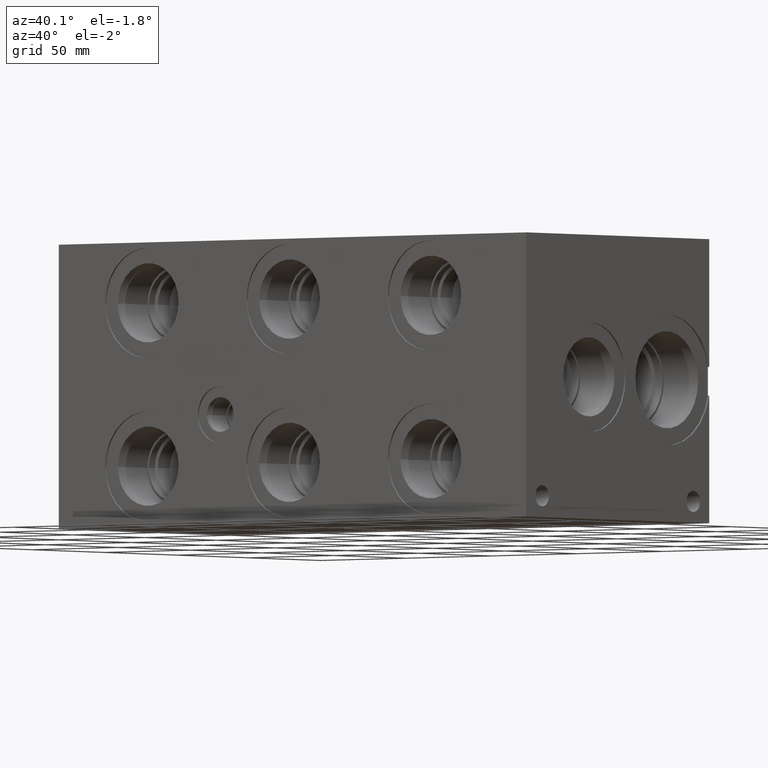
[diagram: clean part render]
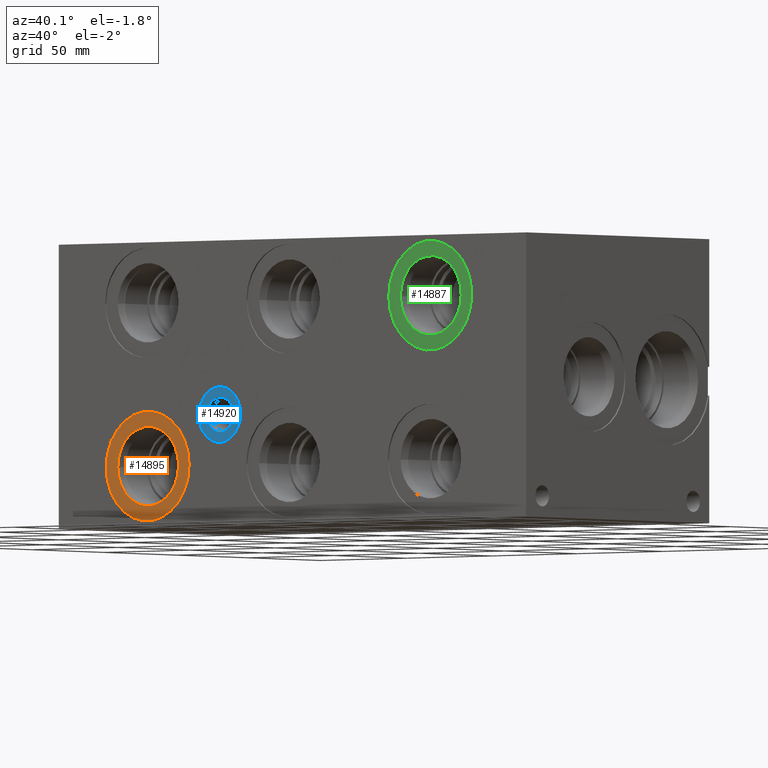
[diagram: same view with three faces highlighted in distinct colors, each labeled with its STEP entity id]
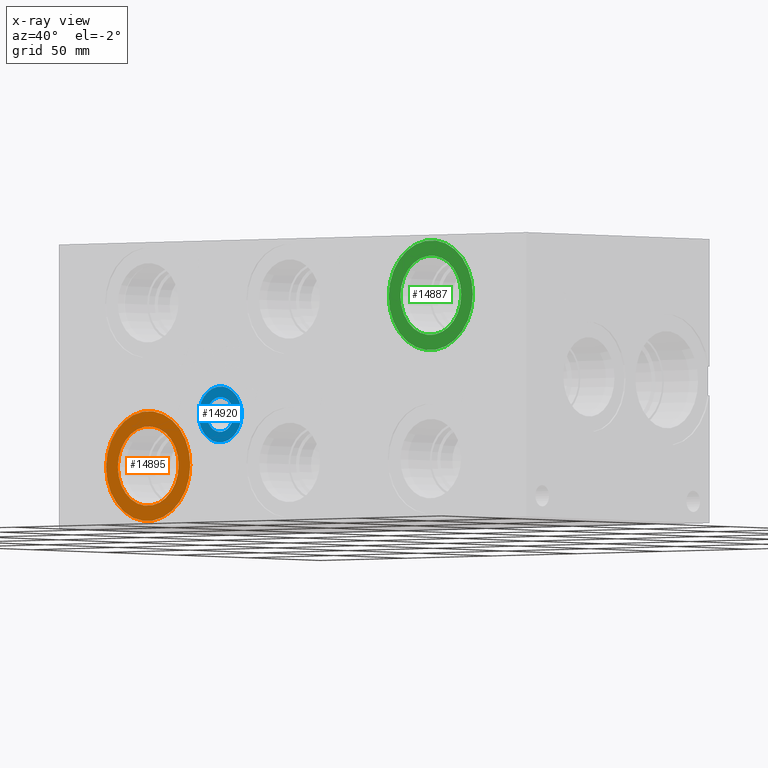
[diagram: x-ray of the same camera — body ghosted, the three highlighted faces saturated]
A machine part, auxiliary view with three faces highlighted in distinct colors.
The next image is the same camera in x-ray (body ghosted, the three faces saturated) — at least one of them is partly hidden behind the body in this view.
Their STEP definitions:

[orange] entity #14895 — the highlighted planar face has unit normal (0, -1, 0).
#414=CIRCLE('',#15706,24.5618);
#415=CIRCLE('',#15707,24.5618);
#416=CIRCLE('',#15708,17.7546);
#681=FACE_BOUND('',#2841,.T.);
#1974=FACE_OUTER_BOUND('',#2840,.T.);
#2840=EDGE_LOOP('',(#12724,#12725));
#2841=EDGE_LOOP('',(#12726));
#6835=VERTEX_POINT('',#25471);
#6836=VERTEX_POINT('',#25472);
#6837=VERTEX_POINT('',#25475);
#8860=EDGE_CURVE('',#6835,#6836,#414,.T.);
#8861=EDGE_CURVE('',#6836,#6835,#415,.T.);
#8862=EDGE_CURVE('',#6837,#6837,#416,.T.);
#12724=ORIENTED_EDGE('',*,*,#8860,.T.);
#12725=ORIENTED_EDGE('',*,*,#8861,.T.);
#12726=ORIENTED_EDGE('',*,*,#8862,.F.);
#13675=PLANE('',#15705);
#14895=ADVANCED_FACE('',(#1974,#681),#13675,.T.);
#15705=AXIS2_PLACEMENT_3D('',#25470,#18594,#18595);
#15706=AXIS2_PLACEMENT_3D('',#25473,#18596,#18597);
#15707=AXIS2_PLACEMENT_3D('',#25474,#18598,#18599);
#15708=AXIS2_PLACEMENT_3D('',#25476,#18600,#18601);
#18594=DIRECTION('center_axis',(0.,-1.,0.));
#18595=DIRECTION('ref_axis',(1.,0.,0.));
#18596=DIRECTION('center_axis',(0.,-1.,0.));
#18597=DIRECTION('ref_axis',(1.,0.,0.));
#18598=DIRECTION('center_axis',(0.,-1.,0.));
#18599=DIRECTION('ref_axis',(1.,0.,0.));
#18600=DIRECTION('center_axis',(0.,-1.,0.));
#18601=DIRECTION('ref_axis',(1.,0.,0.));
#25470=CARTESIAN_POINT('Origin',(51.5874,0.7874,27.0002));
#25471=CARTESIAN_POINT('',(76.1492,0.7874,27.0002));
#25472=CARTESIAN_POINT('',(27.0256,0.7874,27.0002));
#25473=CARTESIAN_POINT('Origin',(51.5874,0.7874,27.0002));
#25474=CARTESIAN_POINT('Origin',(51.5874,0.7874,27.0002));
#25475=CARTESIAN_POINT('',(33.8328,0.7874,27.0002));
#25476=CARTESIAN_POINT('Origin',(51.5874,0.7874,27.0002));

[blue] entity #14920 — the highlighted planar face has unit normal (0, 1, 0).
#446=CIRCLE('',#15762,12.5095);
#447=CIRCLE('',#15763,12.5095);
#448=CIRCLE('',#15765,7.79780000000001);
#449=CIRCLE('',#15766,7.79780000000001);
#686=FACE_BOUND('',#2871,.T.);
#1999=FACE_OUTER_BOUND('',#2870,.T.);
#2870=EDGE_LOOP('',(#12842,#12843));
#2871=EDGE_LOOP('',(#12844,#12845));
#6870=VERTEX_POINT('',#25581);
#6871=VERTEX_POINT('',#25583);
#6872=VERTEX_POINT('',#25587);
#6873=VERTEX_POINT('',#25588);
#8912=EDGE_CURVE('',#6870,#6871,#446,.T.);
#8913=EDGE_CURVE('',#6871,#6870,#447,.T.);
#8914=EDGE_CURVE('',#6872,#6873,#448,.T.);
#8915=EDGE_CURVE('',#6873,#6872,#449,.T.);
#12842=ORIENTED_EDGE('',*,*,#8913,.F.);
#12843=ORIENTED_EDGE('',*,*,#8912,.F.);
#12844=ORIENTED_EDGE('',*,*,#8914,.T.);
#12845=ORIENTED_EDGE('',*,*,#8915,.T.);
#13680=PLANE('',#15764);
#14920=ADVANCED_FACE('',(#1999,#686),#13680,.F.);
#15762=AXIS2_PLACEMENT_3D('',#25584,#18728,#18729);
#15763=AXIS2_PLACEMENT_3D('',#25585,#18730,#18731);
#15764=AXIS2_PLACEMENT_3D('',#25586,#18732,#18733);
#15765=AXIS2_PLACEMENT_3D('',#25589,#18734,#18735);
#15766=AXIS2_PLACEMENT_3D('',#25590,#18736,#18737);
#18728=DIRECTION('center_axis',(0.,1.,0.));
#18729=DIRECTION('ref_axis',(1.,0.,0.));
#18730=DIRECTION('center_axis',(0.,1.,0.));
#18731=DIRECTION('ref_axis',(1.,0.,0.));
#18732=DIRECTION('center_axis',(0.,1.,0.));
#18733=DIRECTION('ref_axis',(0.,0.,1.));
#18734=DIRECTION('center_axis',(0.,1.,0.));
#18735=DIRECTION('ref_axis',(1.,0.,0.));
#18736=DIRECTION('center_axis',(0.,1.,0.));
#18737=DIRECTION('ref_axis',(1.,0.,0.));
#25581=CARTESIAN_POINT('',(81.1657,0.7874,49.2252));
#25583=CARTESIAN_POINT('',(106.1847,0.7874,49.2252));
#25584=CARTESIAN_POINT('Origin',(93.6752,0.7874,49.2252));
#25585=CARTESIAN_POINT('Origin',(93.6752,0.7874,49.2252));
#25586=CARTESIAN_POINT('Origin',(101.473,0.7874,49.2252));
#25587=CARTESIAN_POINT('',(101.473,0.7874,49.2252));
#25588=CARTESIAN_POINT('',(85.8774,0.787400000000002,49.2252));
#25589=CARTESIAN_POINT('Origin',(93.6752,0.7874,49.2252));
#25590=CARTESIAN_POINT('Origin',(93.6752,0.7874,49.2252));

[green] entity #14887 — the highlighted planar face has unit normal (0, -1, 0).
#408=CIRCLE('',#15692,24.5618);
#409=CIRCLE('',#15693,24.5618);
#410=CIRCLE('',#15694,17.7546);
#679=FACE_BOUND('',#2831,.T.);
#1966=FACE_OUTER_BOUND('',#2830,.T.);
#2830=EDGE_LOOP('',(#12690,#12691));
#2831=EDGE_LOOP('',(#12692));
#6827=VERTEX_POINT('',#25443);
#6828=VERTEX_POINT('',#25444);
#6829=VERTEX_POINT('',#25447);
#8848=EDGE_CURVE('',#6827,#6828,#408,.T.);
#8849=EDGE_CURVE('',#6828,#6827,#409,.T.);
#8850=EDGE_CURVE('',#6829,#6829,#410,.T.);
#12690=ORIENTED_EDGE('',*,*,#8848,.T.);
#12691=ORIENTED_EDGE('',*,*,#8849,.T.);
#12692=ORIENTED_EDGE('',*,*,#8850,.F.);
#13673=PLANE('',#15691);
#14887=ADVANCED_FACE('',(#1966,#679),#13673,.T.);
#15691=AXIS2_PLACEMENT_3D('',#25442,#18560,#18561);
#15692=AXIS2_PLACEMENT_3D('',#25445,#18562,#18563);
#15693=AXIS2_PLACEMENT_3D('',#25446,#18564,#18565);
#15694=AXIS2_PLACEMENT_3D('',#25448,#18566,#18567);
#18560=DIRECTION('center_axis',(0.,-1.,0.));
#18561=DIRECTION('ref_axis',(1.,0.,0.));
#18562=DIRECTION('center_axis',(0.,-1.,0.));
#18563=DIRECTION('ref_axis',(1.,0.,0.));
#18564=DIRECTION('center_axis',(0.,-1.,0.));
#18565=DIRECTION('ref_axis',(1.,0.,0.));
#18566=DIRECTION('center_axis',(0.,-1.,0.));
#18567=DIRECTION('ref_axis',(1.,0.,0.));
#25442=CARTESIAN_POINT('Origin',(216.6874,0.7874,100.0252));
#25443=CARTESIAN_POINT('',(241.2492,0.7874,100.0252));
#25444=CARTESIAN_POINT('',(192.1256,0.7874,100.0252));
#25445=CARTESIAN_POINT('Origin',(216.6874,0.7874,100.0252));
#25446=CARTESIAN_POINT('Origin',(216.6874,0.7874,100.0252));
#25447=CARTESIAN_POINT('',(198.9328,0.7874,100.0252));
#25448=CARTESIAN_POINT('Origin',(216.6874,0.7874,100.0252));